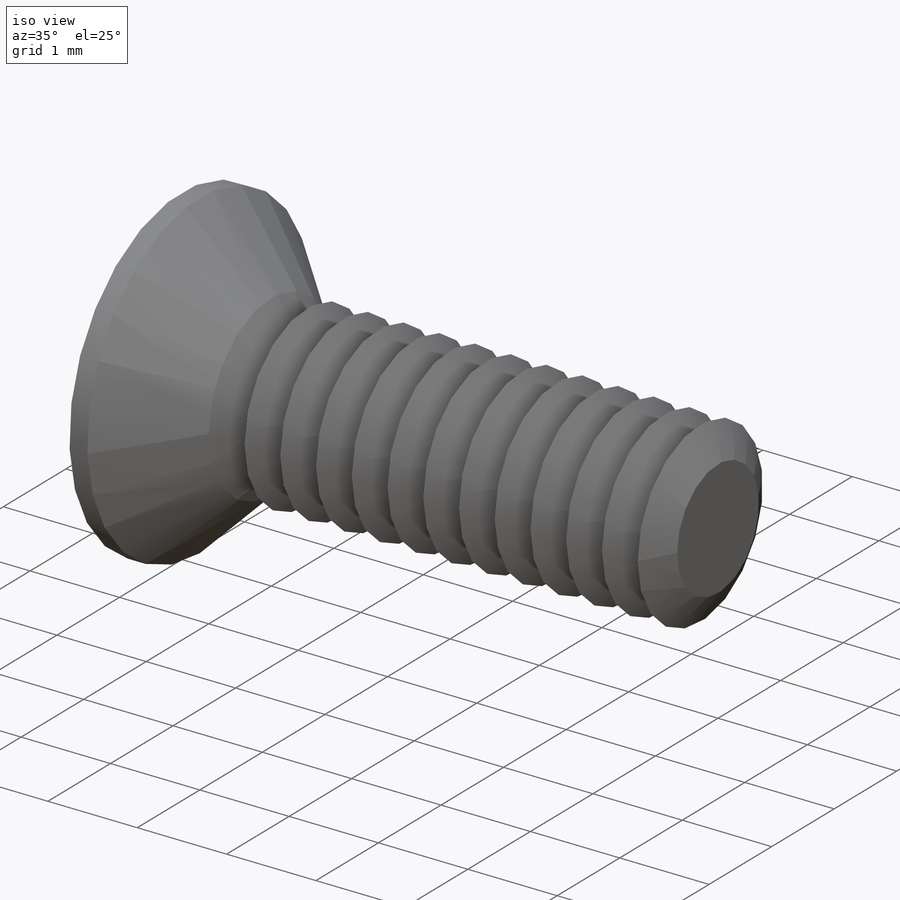
[diagram: iso view]
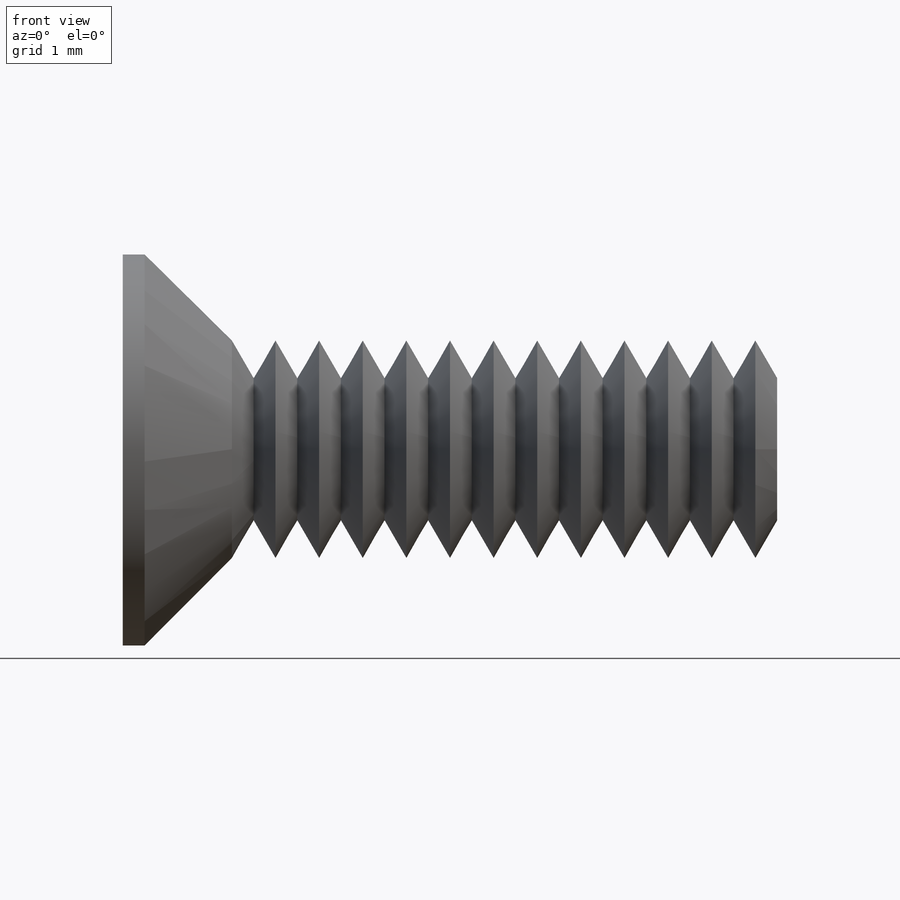
[diagram: front view]
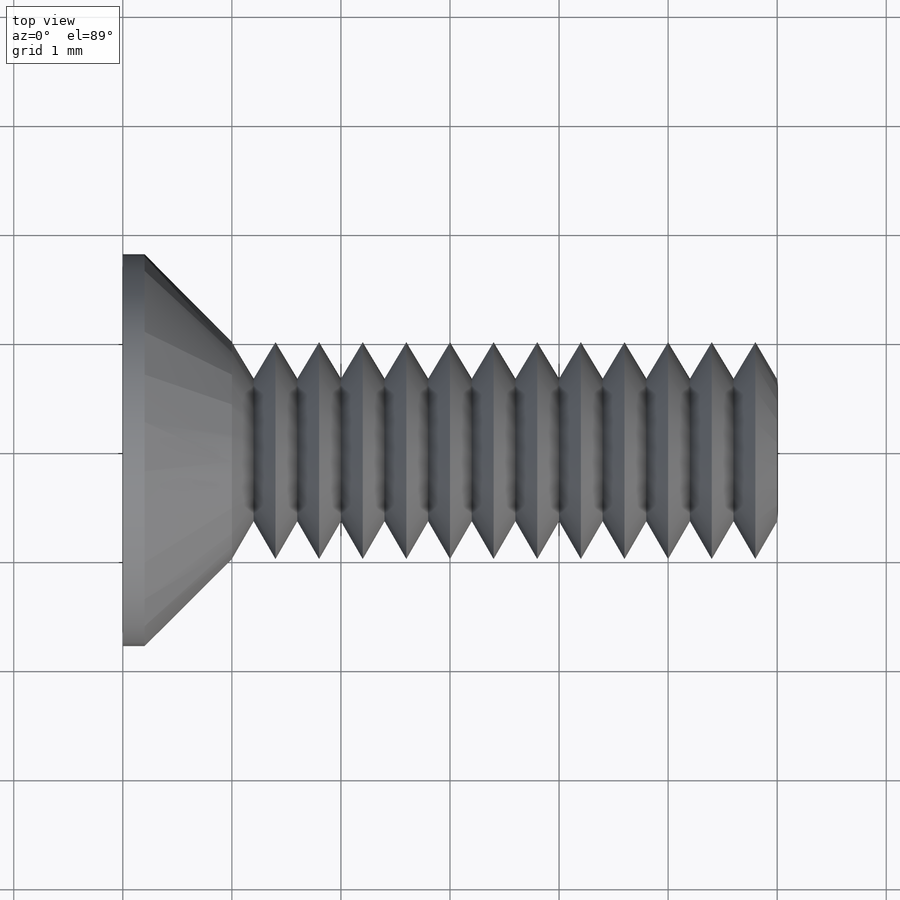
[diagram: top view]
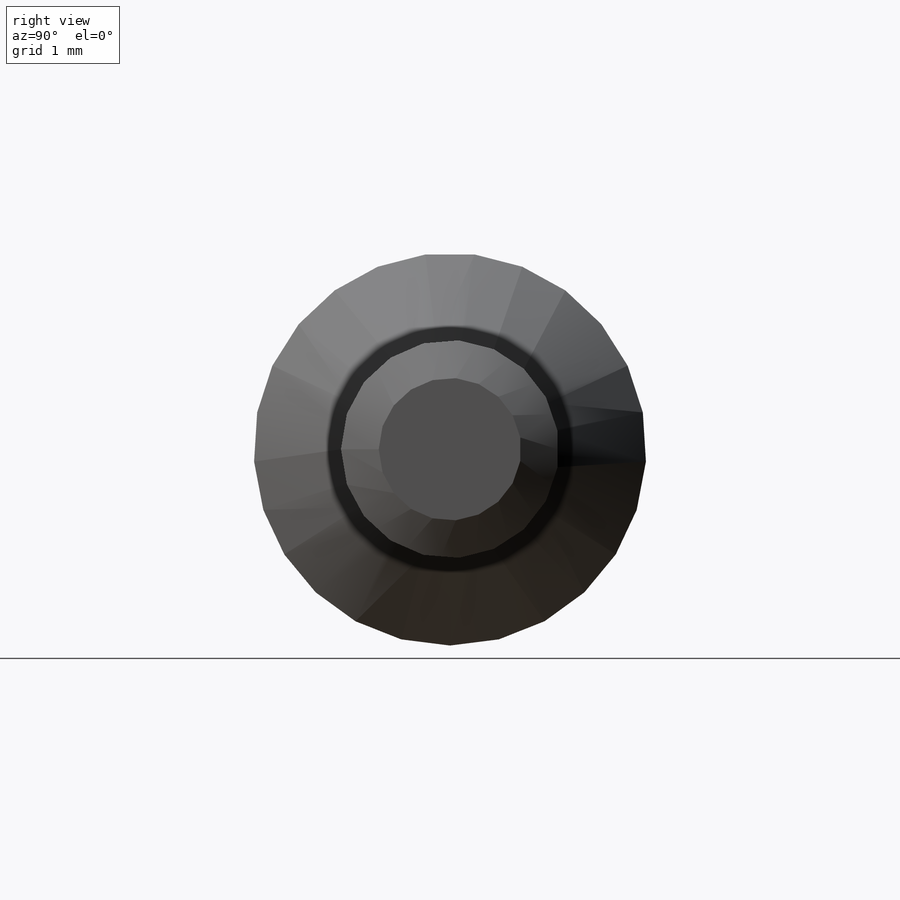
[diagram: right view]
SOLIDWORKS PART (.sldprt)
format: sldprt  version: not decoded by parser v0  size: 334,336 bytes
history: native  units: mm
features: plane x3, sketch x3, material x1, revolve x1, cut_revolve x1, pattern_linear x1, cut_extrude x1, pattern_circular x1, fillet x1 + 1 further entry (+9 scaffold rows collapsed)
feature tree (23):
  scaffold x9  (default folders/planes/origin — collapsed)
  material  "Material <not specified>"
  plane  "Plane1"
  plane  "Plane2"
  plane  "PlaneUnderHead"
  "Design Table"
  sketch  "Sketch1"  dims[c1.MajorRadius=1.0mm c1.HeadRadius=1.5mm c1.HeadHeight=1.6mm c1.Length=6.081mm c1.D1=~0.144003mm c2.D1=150.0deg c2.D2=~0.892616mm c2.D3=~0.163329mm c2.D4=0.8mm c2.HeadRadius=1.5mm c3.D2=~0.857922mm c4.D2=45.0deg c4.D5=0.16mm c4.HeadHeight=1.6mm c5.D2=0.8mm c5.Chamfer=0.16mm c5.D5=~0.852526mm c6.D5=45.0deg c6.D7=1.0mm c6.D1=~0.226274mm c7.D1=45.0deg c8.D1=7.681mm c8.HeadHalfAngle=45.0deg c8.HeadRadius=1.5mm c8.Chamfer=0.2mm c8.Length=6.0mm c9.HeadRadius=2.0mm]
  revolve  "M2-.4x6FHPhillips"  Angle=360deg
  sketch  "Sketch2"  dims[c1.D1=1.0mm c1.Pitch=0.35mm c2.Pitch=0.4mm]
  cut_revolve  "Thread"  Angle=360deg
  pattern_linear  "LPattern1"  Count1=13 Count2=1 Spacing1=0.4mm Spacing2=50mm Number=13 Pitch=0.4mm
  sketch  "Sketch3"  dims[c1.BottomRadius=0.48mm c1.D1=~1.068053mm c2.D1=75.0deg c2.D2=2.0mm c2.D4=~1.150368mm c2.SlotWidth=2.4mm]
  cut_extrude  "HalfSlot"  Depth=0.24mm SlotHalfThickness=0.24mm
  pattern_circular  "4SlotsPattern"  Count=4 Angle=90deg
  fillet  "4CornerRounds"  Radius=0.24mm
decode coverage: 9 of 9 modeling features carry decoded parameters; 1 rows unclassified (native names shown)
note: ~ marks probable driven/reference dimensions
note: suppression state not decoded; provenance and decode notes live in map.json
